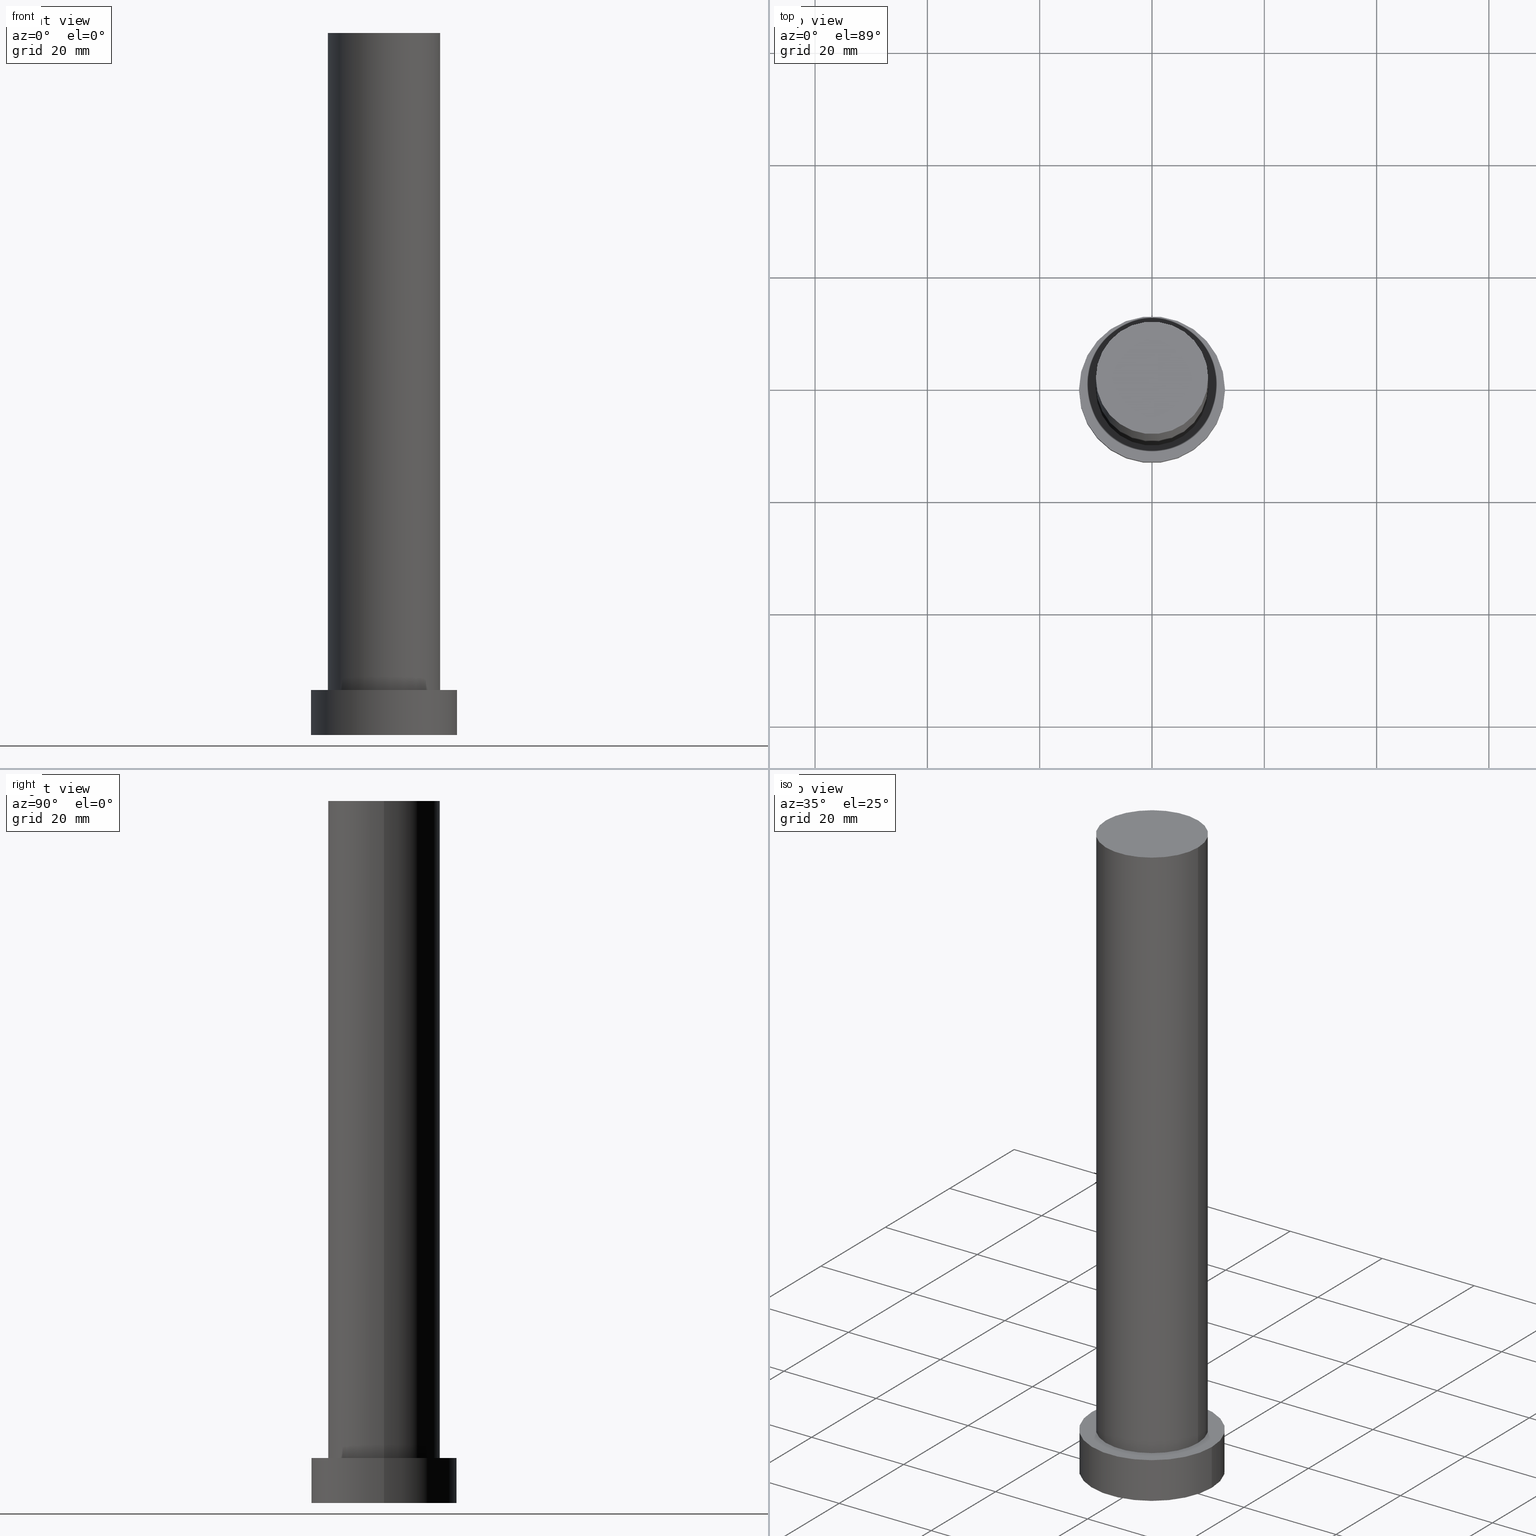
[diagram: canonical four-view strip — front | top / right | iso, engineering-drawing reading convention]
A machine part, canonical four-view strip (front | top / right | iso — engineering-drawing reading convention). The complete STEP part file that produces these views, byte-faithful:
ISO-10303-21;
HEADER;
FILE_DESCRIPTION (( 'STEP AP203' ),
    '1' );
FILE_NAME ('1b50.STEP',
    '2023-02-13T07:34:41',
    ( '' ),
    ( '' ),
    'SwSTEP 2.0',
    'SolidWorks 2019',
    '' );
FILE_SCHEMA (( 'CONFIG_CONTROL_DESIGN' ));
ENDSEC;

DATA;
#1 = CARTESIAN_POINT ( 'NONE',  ( 0.000000000000000000, 0.000000000000000000, 0.000000000000000000 ) ) ;
#2 = DIRECTION ( 'NONE',  ( -1.000000000000000000, 0.000000000000000000, 0.000000000000000000 ) ) ;
#3 = DIRECTION ( 'NONE',  ( 0.000000000000000000, 0.000000000000000000, 1.000000000000000000 ) ) ;
#4 = ORIENTED_EDGE ( 'NONE', *, *, #95, .T. ) ;
#5 = DATE_TIME_ROLE ( 'classification_date' ) ;
#6 = CARTESIAN_POINT ( 'NONE',  ( 0.000000000000000000, 0.000000000000000000, 125.0000000000000000 ) ) ;
#7 = APPLICATION_PROTOCOL_DEFINITION ( 'international standard', 'config_control_design', 1994, #84 ) ;
#8 = DIRECTION ( 'NONE',  ( 1.000000000000000000, 0.000000000000000000, -0.000000000000000000 ) ) ;
#9 = PERSON_AND_ORGANIZATION ( #195, #194 ) ;
#10 = CYLINDRICAL_SURFACE ( 'NONE', #249, 10.00000000000000000 ) ;
#11 = APPROVAL ( #99, 'NEUR�EN�' ) ;
#12 = DIRECTION ( 'NONE',  ( 1.000000000000000000, 0.000000000000000000, -0.000000000000000000 ) ) ;
#13 = CARTESIAN_POINT ( 'NONE',  ( 10.00000000000000000, 1.224646799147353256E-15, 125.0000000000000000 ) ) ;
#14 = APPROVAL_PERSON_ORGANIZATION ( #202, #133, #148 ) ;
#15 = AXIS2_PLACEMENT_3D ( 'NONE', #52, #247, #51 ) ;
#16 = EDGE_CURVE ( 'NONE', #43, #254, #49, .T. ) ;
#17 = PRODUCT_DEFINITION_SHAPE ( 'NONE', 'NONE',  #232 ) ;
#18 = ORIENTED_EDGE ( 'NONE', *, *, #95, .F. ) ;
#19 = ORIENTED_EDGE ( 'NONE', *, *, #157, .F. ) ;
#20 = DIRECTION ( 'NONE',  ( -1.000000000000000000, 0.000000000000000000, 0.000000000000000000 ) ) ;
#21 = COORDINATED_UNIVERSAL_TIME_OFFSET ( 1, 0, .AHEAD. ) ;
#22 = ORIENTED_EDGE ( 'NONE', *, *, #34, .F. ) ;
#23 = COORDINATED_UNIVERSAL_TIME_OFFSET ( 1, 0, .AHEAD. ) ;
#24 = ORIENTED_EDGE ( 'NONE', *, *, #231, .F. ) ;
#25 = DIRECTION ( 'NONE',  ( 0.000000000000000000, 0.000000000000000000, 1.000000000000000000 ) ) ;
#26 = AXIS2_PLACEMENT_3D ( 'NONE', #30, #72, #53 ) ;
#27 =( NAMED_UNIT ( * ) SI_UNIT ( $, .STERADIAN. ) SOLID_ANGLE_UNIT ( ) );
#28 = DIRECTION ( 'NONE',  ( 0.000000000000000000, 0.000000000000000000, 1.000000000000000000 ) ) ;
#29 =( NAMED_UNIT ( * ) PLANE_ANGLE_UNIT ( ) SI_UNIT ( $, .RADIAN. ) );
#30 = CARTESIAN_POINT ( 'NONE',  ( 0.000000000000000000, 0.000000000000000000, 8.000000000000000000 ) ) ;
#31 = LINE ( 'NONE', #88, #58 ) ;
#32 = VECTOR ( 'NONE', #158, 1000.000000000000000 ) ;
#33 = ADVANCED_FACE ( 'NONE', ( #38 ), #215, .T. ) ;
#34 = EDGE_CURVE ( 'NONE', #164, #203, #76, .T. ) ;
#35 = APPLICATION_CONTEXT ( 'configuration controlled 3d designs of mechanical parts and assemblies' ) ;
#36 = CC_DESIGN_APPROVAL ( #11, ( #143 ) ) ;
#37 = ORIENTED_EDGE ( 'NONE', *, *, #74, .F. ) ;
#38 = FACE_OUTER_BOUND ( 'NONE', #63, .T. ) ;
#39 = VERTEX_POINT ( 'NONE', #235 ) ;
#40 = EDGE_LOOP ( 'NONE', ( #219, #79 ) ) ;
#41 = ADVANCED_BREP_SHAPE_REPRESENTATION ( '1b50', ( #188, #198 ), #69 ) ;
#42 = CALENDAR_DATE ( 2023, 13, 2 ) ;
#43 = VERTEX_POINT ( 'NONE', #217 ) ;
#44 = PERSON_AND_ORGANIZATION ( #195, #194 ) ;
#45 = ORIENTED_EDGE ( 'NONE', *, *, #179, .F. ) ;
#46 = APPROVAL_DATE_TIME ( #81, #133 ) ;
#47 = CARTESIAN_POINT ( 'NONE',  ( 13.00000000000000178, 1.592040838891559293E-15, 8.000000000000000000 ) ) ;
#48 = DATE_AND_TIME ( #222, #172 ) ;
#49 = CIRCLE ( 'NONE', #227, 10.00000000000000000 ) ;
#50 = CARTESIAN_POINT ( 'NONE',  ( -13.00000000000000178, 0.000000000000000000, 0.000000000000000000 ) ) ;
#51 = DIRECTION ( 'NONE',  ( 1.000000000000000000, 0.000000000000000000, 0.000000000000000000 ) ) ;
#52 = CARTESIAN_POINT ( 'NONE',  ( 0.000000000000000000, 0.000000000000000000, 8.000000000000000000 ) ) ;
#53 = DIRECTION ( 'NONE',  ( 1.000000000000000000, 0.000000000000000000, 0.000000000000000000 ) ) ;
#54 = AXIS2_PLACEMENT_3D ( 'NONE', #214, #94, #60 ) ;
#55 = EDGE_CURVE ( 'NONE', #250, #203, #98, .T. ) ;
#56 = CC_DESIGN_PERSON_AND_ORGANIZATION_ASSIGNMENT ( #170, #124, ( #232 ) ) ;
#57 = DIRECTION ( 'NONE',  ( 0.000000000000000000, 0.000000000000000000, 1.000000000000000000 ) ) ;
#58 = VECTOR ( 'NONE', #211, 1000.000000000000000 ) ;
#59 = EDGE_LOOP ( 'NONE', ( #253, #237 ) ) ;
#60 = DIRECTION ( 'NONE',  ( 1.000000000000000000, 0.000000000000000000, 0.000000000000000000 ) ) ;
#61 = CARTESIAN_POINT ( 'NONE',  ( 0.000000000000000000, 0.000000000000000000, 8.000000000000000000 ) ) ;
#62 = PERSON_AND_ORGANIZATION_ROLE ( 'design_supplier' ) ;
#63 = EDGE_LOOP ( 'NONE', ( #144, #165, #4, #24 ) ) ;
#64 = DATE_TIME_ROLE ( 'creation_date' ) ;
#65 = ORIENTED_EDGE ( 'NONE', *, *, #197, .T. ) ;
#66 = SECURITY_CLASSIFICATION_LEVEL ( 'unclassified' ) ;
#67 = MECHANICAL_CONTEXT ( 'NONE', #84, 'mechanical' ) ;
#68 = DIRECTION ( 'NONE',  ( -1.000000000000000000, 0.000000000000000000, 0.000000000000000000 ) ) ;
#69 =( GEOMETRIC_REPRESENTATION_CONTEXT ( 3 ) GLOBAL_UNCERTAINTY_ASSIGNED_CONTEXT ( ( #184 ) ) GLOBAL_UNIT_ASSIGNED_CONTEXT ( ( #169, #29, #27 ) ) REPRESENTATION_CONTEXT ( 'NONE', 'WORKASPACE' ) );
#70 = DIRECTION ( 'NONE',  ( -0.000000000000000000, -0.000000000000000000, -1.000000000000000000 ) ) ;
#71 = CARTESIAN_POINT ( 'NONE',  ( 0.000000000000000000, 0.000000000000000000, 0.000000000000000000 ) ) ;
#72 = DIRECTION ( 'NONE',  ( 0.000000000000000000, 0.000000000000000000, 1.000000000000000000 ) ) ;
#73 = CC_DESIGN_DATE_AND_TIME_ASSIGNMENT ( #122, #5, ( #80 ) ) ;
#74 = EDGE_CURVE ( 'NONE', #39, #139, #175, .T. ) ;
#75 = CARTESIAN_POINT ( 'NONE',  ( 13.00000000000000178, 1.592040838891559293E-15, 8.000000000000000000 ) ) ;
#76 = LINE ( 'NONE', #75, #32 ) ;
#77 = DATE_AND_TIME ( #103, #226 ) ;
#78 = FACE_OUTER_BOUND ( 'NONE', #178, .T. ) ;
#79 = ORIENTED_EDGE ( 'NONE', *, *, #16, .F. ) ;
#80 = SECURITY_CLASSIFICATION ( '', '', #66 ) ;
#81 = DATE_AND_TIME ( #101, #152 ) ;
#82 = LINE ( 'NONE', #86, #225 ) ;
#83 = FACE_OUTER_BOUND ( 'NONE', #239, .T. ) ;
#84 = APPLICATION_CONTEXT ( 'configuration controlled 3d designs of mechanical parts and assemblies' ) ;
#85 = COORDINATED_UNIVERSAL_TIME_OFFSET ( 1, 0, .AHEAD. ) ;
#86 = CARTESIAN_POINT ( 'NONE',  ( -10.00000000000000000, 0.000000000000000000, 125.0000000000000000 ) ) ;
#87 = CIRCLE ( 'NONE', #134, 10.00000000000000000 ) ;
#88 = CARTESIAN_POINT ( 'NONE',  ( -13.00000000000000178, 0.000000000000000000, 8.000000000000000000 ) ) ;
#89 = CARTESIAN_POINT ( 'NONE',  ( 0.000000000000000000, 0.000000000000000000, 125.0000000000000000 ) ) ;
#90 = LOCAL_TIME ( 8, 34, 41.00000000000000000, #163 ) ;
#91 = AXIS2_PLACEMENT_3D ( 'NONE', #149, #28, #104 ) ;
#92 = AXIS2_PLACEMENT_3D ( 'NONE', #233, #57, #138 ) ;
#93 = PRODUCT ( '1b50', '1b50', '', ( #67 ) ) ;
#94 = DIRECTION ( 'NONE',  ( 0.000000000000000000, 0.000000000000000000, 1.000000000000000000 ) ) ;
#95 = EDGE_CURVE ( 'NONE', #203, #250, #245, .T. ) ;
#96 = APPROVAL_PERSON_ORGANIZATION ( #150, #11, #204 ) ;
#97 = DIRECTION ( 'NONE',  ( 0.000000000000000000, 0.000000000000000000, 1.000000000000000000 ) ) ;
#98 = CIRCLE ( 'NONE', #92, 13.00000000000000178 ) ;
#99 = APPROVAL_STATUS ( 'not_yet_approved' ) ;
#100 = CARTESIAN_POINT ( 'NONE',  ( 0.000000000000000000, 0.000000000000000000, 125.0000000000000000 ) ) ;
#101 = CALENDAR_DATE ( 2023, 13, 2 ) ;
#102 = DESIGN_CONTEXT ( 'detailed design', #35, 'design' ) ;
#103 = CALENDAR_DATE ( 2023, 13, 2 ) ;
#104 = DIRECTION ( 'NONE',  ( 1.000000000000000000, 0.000000000000000000, 0.000000000000000000 ) ) ;
#105 = APPROVAL_PERSON_ORGANIZATION ( #9, #190, #199 ) ;
#106 = PERSON_AND_ORGANIZATION_ROLE ( 'creator' ) ;
#107 = DIRECTION ( 'NONE',  ( 0.000000000000000000, 0.000000000000000000, 1.000000000000000000 ) ) ;
#108 = ADVANCED_FACE ( 'NONE', ( #162 ), #236, .T. ) ;
#109 = CARTESIAN_POINT ( 'NONE',  ( 13.00000000000000178, 1.592040838891559293E-15, 0.000000000000000000 ) ) ;
#110 = SHAPE_DEFINITION_REPRESENTATION ( #17, #41 ) ;
#111 = CARTESIAN_POINT ( 'NONE',  ( 0.000000000000000000, 0.000000000000000000, 125.0000000000000000 ) ) ;
#112 = AXIS2_PLACEMENT_3D ( 'NONE', #71, #230, #12 ) ;
#113 = CLOSED_SHELL ( 'NONE', ( #108, #33, #114, #137, #206, #135, #251 ) ) ;
#114 = ADVANCED_FACE ( 'NONE', ( #78 ), #210, .T. ) ;
#115 = AXIS2_PLACEMENT_3D ( 'NONE', #255, #97, #201 ) ;
#116 = ORIENTED_EDGE ( 'NONE', *, *, #55, .F. ) ;
#117 = DIRECTION ( 'NONE',  ( -0.000000000000000000, -0.000000000000000000, -1.000000000000000000 ) ) ;
#118 = ORIENTED_EDGE ( 'NONE', *, *, #231, .T. ) ;
#119 = APPROVAL_DATE_TIME ( #48, #190 ) ;
#120 = CC_DESIGN_APPROVAL ( #133, ( #80 ) ) ;
#121 = ORIENTED_EDGE ( 'NONE', *, *, #55, .T. ) ;
#122 = DATE_AND_TIME ( #42, #128 ) ;
#123 = ORIENTED_EDGE ( 'NONE', *, *, #216, .F. ) ;
#124 = PERSON_AND_ORGANIZATION_ROLE ( 'creator' ) ;
#125 = EDGE_LOOP ( 'NONE', ( #123, #37, #65, #196 ) ) ;
#126 = APPROVAL_STATUS ( 'not_yet_approved' ) ;
#127 = CARTESIAN_POINT ( 'NONE',  ( 0.000000000000000000, 0.000000000000000000, 8.000000000000000000 ) ) ;
#128 = LOCAL_TIME ( 8, 34, 41.00000000000000000, #146 ) ;
#129 = PERSON_AND_ORGANIZATION_ROLE ( 'design_owner' ) ;
#130 = DIRECTION ( 'NONE',  ( -0.000000000000000000, -0.000000000000000000, -1.000000000000000000 ) ) ;
#131 = LINE ( 'NONE', #132, #174 ) ;
#132 = CARTESIAN_POINT ( 'NONE',  ( 10.00000000000000000, 1.224646799147353256E-15, 125.0000000000000000 ) ) ;
#133 = APPROVAL ( #126, 'NEUR�EN�' ) ;
#134 = AXIS2_PLACEMENT_3D ( 'NONE', #89, #229, #156 ) ;
#135 = ADVANCED_FACE ( 'NONE', ( #207 ), #10, .T. ) ;
#136 = CIRCLE ( 'NONE', #26, 13.00000000000000178 ) ;
#137 = ADVANCED_FACE ( 'NONE', ( #244, #223 ), #155, .T. ) ;
#138 = DIRECTION ( 'NONE',  ( 1.000000000000000000, 0.000000000000000000, 0.000000000000000000 ) ) ;
#139 = VERTEX_POINT ( 'NONE', #13 ) ;
#140 = ORIENTED_EDGE ( 'NONE', *, *, #216, .T. ) ;
#141 = ORIENTED_EDGE ( 'NONE', *, *, #193, .T. ) ;
#142 = PERSON_AND_ORGANIZATION ( #195, #194 ) ;
#143 = PRODUCT_DEFINITION_FORMATION_WITH_SPECIFIED_SOURCE ( 'LIBOVOLN�', '', #93, .NOT_KNOWN. ) ;
#144 = ORIENTED_EDGE ( 'NONE', *, *, #193, .F. ) ;
#145 = CC_DESIGN_PERSON_AND_ORGANIZATION_ASSIGNMENT ( #44, #106, ( #143 ) ) ;
#146 = COORDINATED_UNIVERSAL_TIME_OFFSET ( 1, 0, .AHEAD. ) ;
#147 = ORIENTED_EDGE ( 'NONE', *, *, #179, .T. ) ;
#148 = APPROVAL_ROLE ( '' ) ;
#149 = CARTESIAN_POINT ( 'NONE',  ( 0.000000000000000000, 0.000000000000000000, 8.000000000000000000 ) ) ;
#150 = PERSON_AND_ORGANIZATION ( #195, #194 ) ;
#151 = DIRECTION ( 'NONE',  ( 1.000000000000000000, 0.000000000000000000, -0.000000000000000000 ) ) ;
#152 = LOCAL_TIME ( 8, 34, 41.00000000000000000, #23 ) ;
#153 = CC_DESIGN_PERSON_AND_ORGANIZATION_ASSIGNMENT ( #166, #129, ( #93 ) ) ;
#154 = DIRECTION ( 'NONE',  ( 0.000000000000000000, 0.000000000000000000, 1.000000000000000000 ) ) ;
#155 = PLANE ( 'NONE',  #208 ) ;
#156 = DIRECTION ( 'NONE',  ( 1.000000000000000000, 0.000000000000000000, 0.000000000000000000 ) ) ;
#157 = EDGE_CURVE ( 'NONE', #139, #39, #87, .T. ) ;
#158 = DIRECTION ( 'NONE',  ( -0.000000000000000000, -0.000000000000000000, -1.000000000000000000 ) ) ;
#159 = CC_DESIGN_DATE_AND_TIME_ASSIGNMENT ( #77, #64, ( #232 ) ) ;
#160 = CC_DESIGN_SECURITY_CLASSIFICATION ( #80, ( #143 ) ) ;
#161 = DIRECTION ( 'NONE',  ( 1.000000000000000000, 0.000000000000000000, 0.000000000000000000 ) ) ;
#162 = FACE_OUTER_BOUND ( 'NONE', #181, .T. ) ;
#163 = COORDINATED_UNIVERSAL_TIME_OFFSET ( 1, 0, .AHEAD. ) ;
#164 = VERTEX_POINT ( 'NONE', #47 ) ;
#165 = ORIENTED_EDGE ( 'NONE', *, *, #34, .T. ) ;
#166 = PERSON_AND_ORGANIZATION ( #195, #194 ) ;
#167 = FACE_OUTER_BOUND ( 'NONE', #59, .T. ) ;
#168 = CALENDAR_DATE ( 2023, 13, 2 ) ;
#169 =( LENGTH_UNIT ( ) NAMED_UNIT ( * ) SI_UNIT ( .MILLI., .METRE. ) );
#170 = PERSON_AND_ORGANIZATION ( #195, #194 ) ;
#171 = CARTESIAN_POINT ( 'NONE',  ( -13.00000000000000178, 0.000000000000000000, 8.000000000000000000 ) ) ;
#172 = LOCAL_TIME ( 8, 34, 41.00000000000000000, #85 ) ;
#173 = CARTESIAN_POINT ( 'NONE',  ( 0.000000000000000000, 0.000000000000000000, 8.000000000000000000 ) ) ;
#174 = VECTOR ( 'NONE', #212, 1000.000000000000000 ) ;
#175 = CIRCLE ( 'NONE', #54, 10.00000000000000000 ) ;
#176 = CARTESIAN_POINT ( 'NONE',  ( 0.000000000000000000, 0.000000000000000000, 8.000000000000000000 ) ) ;
#177 = CIRCLE ( 'NONE', #91, 10.00000000000000000 ) ;
#178 = EDGE_LOOP ( 'NONE', ( #22, #45, #118, #121 ) ) ;
#179 = EDGE_CURVE ( 'NONE', #220, #164, #248, .T. ) ;
#180 = DIRECTION ( 'NONE',  ( -0.000000000000000000, -0.000000000000000000, -1.000000000000000000 ) ) ;
#181 = EDGE_LOOP ( 'NONE', ( #19, #140, #205, #252 ) ) ;
#182 = PERSON_AND_ORGANIZATION ( #195, #194 ) ;
#183 = PLANE ( 'NONE',  #234 ) ;
#184 = UNCERTAINTY_MEASURE_WITH_UNIT (LENGTH_MEASURE( 1.000000000000000082E-05 ), #169, 'distance_accuracy_value', 'NONE');
#185 = AXIS2_PLACEMENT_3D ( 'NONE', #100, #180, #2 ) ;
#186 = DIRECTION ( 'NONE',  ( 1.000000000000000000, 0.000000000000000000, 0.000000000000000000 ) ) ;
#187 = CC_DESIGN_PERSON_AND_ORGANIZATION_ASSIGNMENT ( #142, #218, ( #80 ) ) ;
#188 = MANIFOLD_SOLID_BREP ( 'P�idat vysunut�m3', #113 ) ;
#189 = PLANE ( 'NONE',  #112 ) ;
#190 = APPROVAL ( #209, 'NEUR�EN�' ) ;
#191 = PRODUCT_RELATED_PRODUCT_CATEGORY ( 'detail', '', ( #93 ) ) ;
#192 = AXIS2_PLACEMENT_3D ( 'NONE', #176, #117, #20 ) ;
#193 = EDGE_CURVE ( 'NONE', #164, #220, #136, .T. ) ;
#194 = ORGANIZATION ( 'NEUR�EN�', 'NEUR�EN�', '' ) ;
#195 = PERSON ( 'NEUR�EN�', 'NEUR�EN�', 'NEUR�EN�', ('NEUR�EN�'), ('NEUR�EN�'), ('NEUR�EN�') ) ;
#196 = ORIENTED_EDGE ( 'NONE', *, *, #240, .T. ) ;
#197 = EDGE_CURVE ( 'NONE', #39, #254, #82, .T. ) ;
#198 = AXIS2_PLACEMENT_3D ( 'NONE', #1, #3, #186 ) ;
#199 = APPROVAL_ROLE ( '' ) ;
#200 = AXIS2_PLACEMENT_3D ( 'NONE', #127, #246, #228 ) ;
#201 = DIRECTION ( 'NONE',  ( 1.000000000000000000, 0.000000000000000000, 0.000000000000000000 ) ) ;
#202 = PERSON_AND_ORGANIZATION ( #195, #194 ) ;
#203 = VERTEX_POINT ( 'NONE', #109 ) ;
#204 = APPROVAL_ROLE ( '' ) ;
#205 = ORIENTED_EDGE ( 'NONE', *, *, #16, .T. ) ;
#206 = ADVANCED_FACE ( 'NONE', ( #83 ), #189, .F. ) ;
#207 = FACE_OUTER_BOUND ( 'NONE', #125, .T. ) ;
#208 = AXIS2_PLACEMENT_3D ( 'NONE', #173, #154, #8 ) ;
#209 = APPROVAL_STATUS ( 'not_yet_approved' ) ;
#210 = CYLINDRICAL_SURFACE ( 'NONE', #200, 13.00000000000000178 ) ;
#211 = DIRECTION ( 'NONE',  ( -0.000000000000000000, -0.000000000000000000, -1.000000000000000000 ) ) ;
#212 = DIRECTION ( 'NONE',  ( -0.000000000000000000, -0.000000000000000000, -1.000000000000000000 ) ) ;
#213 = EDGE_LOOP ( 'NONE', ( #147, #141 ) ) ;
#214 = CARTESIAN_POINT ( 'NONE',  ( 0.000000000000000000, 0.000000000000000000, 125.0000000000000000 ) ) ;
#215 = CYLINDRICAL_SURFACE ( 'NONE', #192, 13.00000000000000178 ) ;
#216 = EDGE_CURVE ( 'NONE', #139, #43, #131, .T. ) ;
#217 = CARTESIAN_POINT ( 'NONE',  ( 10.00000000000000000, 1.224646799147353256E-15, 8.000000000000000000 ) ) ;
#218 = PERSON_AND_ORGANIZATION_ROLE ( 'classification_officer' ) ;
#219 = ORIENTED_EDGE ( 'NONE', *, *, #240, .F. ) ;
#220 = VERTEX_POINT ( 'NONE', #171 ) ;
#221 = CC_DESIGN_PERSON_AND_ORGANIZATION_ASSIGNMENT ( #182, #62, ( #143 ) ) ;
#222 = CALENDAR_DATE ( 2023, 13, 2 ) ;
#223 = FACE_OUTER_BOUND ( 'NONE', #213, .T. ) ;
#224 = APPLICATION_PROTOCOL_DEFINITION ( 'international standard', 'config_control_design', 1994, #35 ) ;
#225 = VECTOR ( 'NONE', #130, 1000.000000000000000 ) ;
#226 = LOCAL_TIME ( 8, 34, 41.00000000000000000, #21 ) ;
#227 = AXIS2_PLACEMENT_3D ( 'NONE', #61, #25, #161 ) ;
#228 = DIRECTION ( 'NONE',  ( -1.000000000000000000, 0.000000000000000000, 0.000000000000000000 ) ) ;
#229 = DIRECTION ( 'NONE',  ( 0.000000000000000000, 0.000000000000000000, 1.000000000000000000 ) ) ;
#230 = DIRECTION ( 'NONE',  ( 0.000000000000000000, 0.000000000000000000, 1.000000000000000000 ) ) ;
#231 = EDGE_CURVE ( 'NONE', #220, #250, #31, .T. ) ;
#232 = PRODUCT_DEFINITION ( 'NEZN�M�', '', #143, #102 ) ;
#233 = CARTESIAN_POINT ( 'NONE',  ( 0.000000000000000000, 0.000000000000000000, 0.000000000000000000 ) ) ;
#234 = AXIS2_PLACEMENT_3D ( 'NONE', #6, #107, #151 ) ;
#235 = CARTESIAN_POINT ( 'NONE',  ( -10.00000000000000000, 0.000000000000000000, 125.0000000000000000 ) ) ;
#236 = CYLINDRICAL_SURFACE ( 'NONE', #185, 10.00000000000000000 ) ;
#237 = ORIENTED_EDGE ( 'NONE', *, *, #157, .T. ) ;
#238 = CC_DESIGN_APPROVAL ( #190, ( #232 ) ) ;
#239 = EDGE_LOOP ( 'NONE', ( #116, #18 ) ) ;
#240 = EDGE_CURVE ( 'NONE', #254, #43, #177, .T. ) ;
#241 = DATE_AND_TIME ( #168, #90 ) ;
#242 = CARTESIAN_POINT ( 'NONE',  ( -10.00000000000000000, 0.000000000000000000, 8.000000000000000000 ) ) ;
#243 = APPROVAL_DATE_TIME ( #241, #11 ) ;
#244 = FACE_BOUND ( 'NONE', #40, .T. ) ;
#245 = CIRCLE ( 'NONE', #115, 13.00000000000000178 ) ;
#246 = DIRECTION ( 'NONE',  ( -0.000000000000000000, -0.000000000000000000, -1.000000000000000000 ) ) ;
#247 = DIRECTION ( 'NONE',  ( 0.000000000000000000, 0.000000000000000000, 1.000000000000000000 ) ) ;
#248 = CIRCLE ( 'NONE', #15, 13.00000000000000178 ) ;
#249 = AXIS2_PLACEMENT_3D ( 'NONE', #111, #70, #68 ) ;
#250 = VERTEX_POINT ( 'NONE', #50 ) ;
#251 = ADVANCED_FACE ( 'NONE', ( #167 ), #183, .T. ) ;
#252 = ORIENTED_EDGE ( 'NONE', *, *, #197, .F. ) ;
#253 = ORIENTED_EDGE ( 'NONE', *, *, #74, .T. ) ;
#254 = VERTEX_POINT ( 'NONE', #242 ) ;
#255 = CARTESIAN_POINT ( 'NONE',  ( 0.000000000000000000, 0.000000000000000000, 0.000000000000000000 ) ) ;
ENDSEC;
END-ISO-10303-21;
